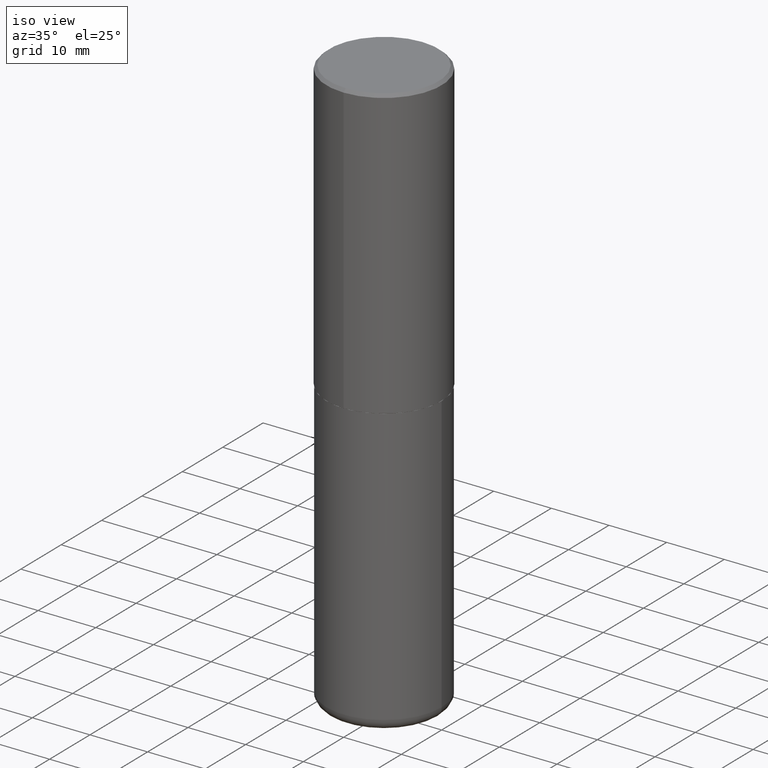
[diagram: clean part render]
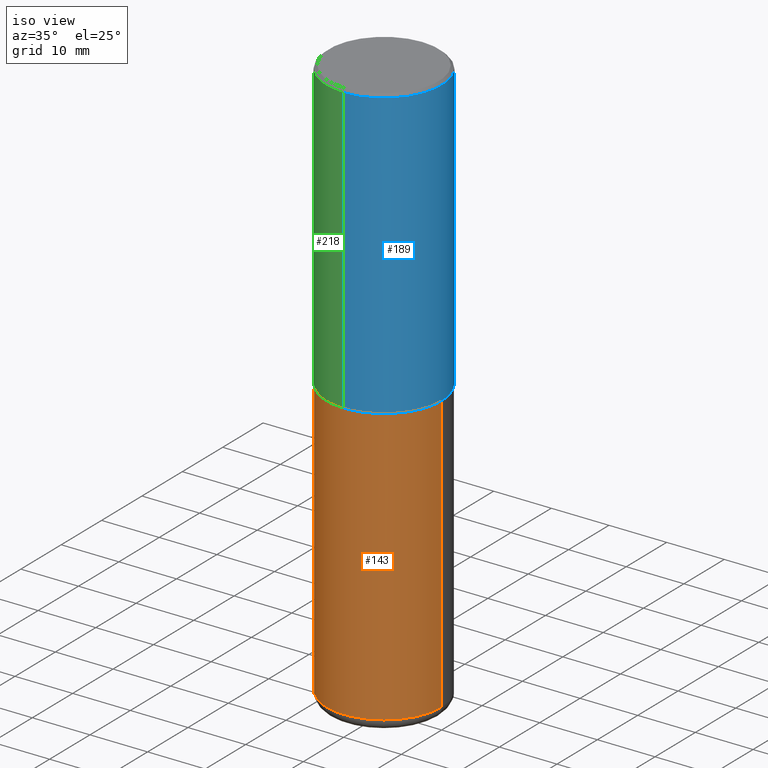
[diagram: same view with three faces highlighted in distinct colors, each labeled with its STEP entity id]
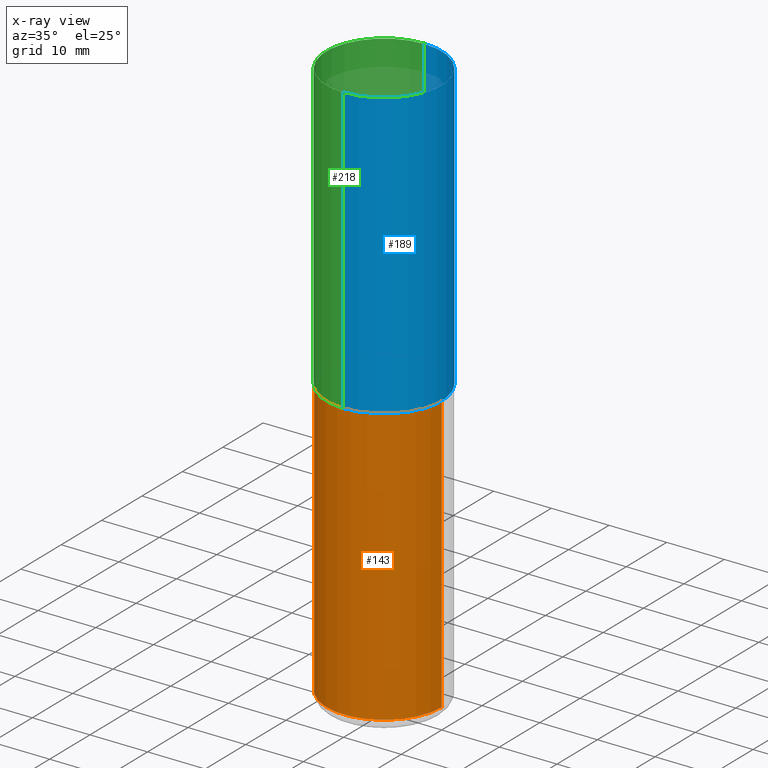
[diagram: x-ray of the same camera — body ghosted, the three highlighted faces saturated]
A machine part, iso view with three faces highlighted in distinct colors.
The next image is the same camera in x-ray (body ghosted, the three faces saturated) — at least one of them is partly hidden behind the body in this view.
Their STEP definitions:

[orange] entity #143 — the highlighted cylindrical surface (partial cylindrical patch) has radius 10 mm, axis along (-0, 0, 1).
#3 = ORIENTED_EDGE ( 'NONE', *, *, #142, .F. ) ;
#18 = CARTESIAN_POINT ( 'NONE',  ( 0.3937000000000002164, -1.622037485586359329E-14, -3.858300000000000285 ) ) ;
#36 = ORIENTED_EDGE ( 'NONE', *, *, #86, .T. ) ;
#46 = CARTESIAN_POINT ( 'NONE',  ( 4.813905344975441835E-29, -6.872981015512731707E-15, -1.968500000000000139 ) ) ;
#75 = DIRECTION ( 'NONE',  ( 1.000000000000000000, -6.982962677686266711E-15, 4.876176775795935793E-29 ) ) ;
#80 = DIRECTION ( 'NONE',  ( -2.445468806185136597E-29, 3.491481338843145583E-15, 1.000000000000000000 ) ) ;
#82 = ORIENTED_EDGE ( 'NONE', *, *, #210, .F. ) ;
#86 = EDGE_CURVE ( 'NONE', #324, #238, #405, .T. ) ;
#108 = ORIENTED_EDGE ( 'NONE', *, *, #244, .T. ) ;
#110 = LINE ( 'NONE', #325, #415 ) ;
#133 = EDGE_LOOP ( 'NONE', ( #3, #36, #108, #82 ) ) ;
#142 = EDGE_CURVE ( 'NONE', #324, #197, #193, .T. ) ;
#143 = ADVANCED_FACE ( 'NONE', ( #297 ), #366, .T. ) ;
#149 = AXIS2_PLACEMENT_3D ( 'NONE', #236, #301, #75 ) ;
#152 = CARTESIAN_POINT ( 'NONE',  ( 9.435352294904112142E-29, -1.347118244965850850E-14, -3.858300000000000285 ) ) ;
#161 = DIRECTION ( 'NONE',  ( -2.445468806185136877E-29, 3.491481338843145188E-15, 1.000000000000000000 ) ) ;
#193 = LINE ( 'NONE', #288, #271 ) ;
#196 = DIRECTION ( 'NONE',  ( 1.000000000000000000, -6.982962677686266711E-15, 0.000000000000000000 ) ) ;
#197 = VERTEX_POINT ( 'NONE', #315 ) ;
#210 = EDGE_CURVE ( 'NONE', #197, #230, #307, .T. ) ;
#230 = VERTEX_POINT ( 'NONE', #312 ) ;
#236 = CARTESIAN_POINT ( 'NONE',  ( 0.000000000000000000, 0.000000000000000000, 0.000000000000000000 ) ) ;
#238 = VERTEX_POINT ( 'NONE', #18 ) ;
#244 = EDGE_CURVE ( 'NONE', #238, #230, #110, .T. ) ;
#271 = VECTOR ( 'NONE', #161, 39.37007874015748143 ) ;
#277 = DIRECTION ( 'NONE',  ( 1.000000000000000000, -6.982962677686265133E-15, 0.000000000000000000 ) ) ;
#280 = AXIS2_PLACEMENT_3D ( 'NONE', #152, #397, #196 ) ;
#288 = CARTESIAN_POINT ( 'NONE',  ( -0.3937000000000001054, 2.797406750687515181E-15, -1.936584745033357016E-29 ) ) ;
#297 = FACE_OUTER_BOUND ( 'NONE', #133, .T. ) ;
#301 = DIRECTION ( 'NONE',  ( -2.445468806185136597E-29, 3.491481338843145583E-15, 1.000000000000000000 ) ) ;
#307 = CIRCLE ( 'NONE', #348, 0.3937000000000000499 ) ;
#312 = CARTESIAN_POINT ( 'NONE',  ( 0.3937000000000000499, -9.622173421717814924E-15, -1.968500000000000139 ) ) ;
#315 = CARTESIAN_POINT ( 'NONE',  ( -0.3937000000000000499, -7.374674981898105316E-15, -1.968500000000000139 ) ) ;
#324 = VERTEX_POINT ( 'NONE', #369 ) ;
#325 = CARTESIAN_POINT ( 'NONE',  ( 0.3937000000000001054, -2.749192406205084005E-15, 1.919750796630860452E-29 ) ) ;
#331 = DIRECTION ( 'NONE',  ( -2.445468806185136877E-29, 3.491481338843145188E-15, 1.000000000000000000 ) ) ;
#348 = AXIS2_PLACEMENT_3D ( 'NONE', #46, #80, #277 ) ;
#366 = CYLINDRICAL_SURFACE ( 'NONE', #149, 0.3937000000000001054 ) ;
#369 = CARTESIAN_POINT ( 'NONE',  ( -0.3937000000000002164, -1.067377569897099292E-14, -3.858300000000000285 ) ) ;
#397 = DIRECTION ( 'NONE',  ( -2.445468806185136597E-29, 3.491481338843145583E-15, 1.000000000000000000 ) ) ;
#405 = CIRCLE ( 'NONE', #280, 0.3937000000000001054 ) ;
#415 = VECTOR ( 'NONE', #331, 39.37007874015748143 ) ;

[blue] entity #189 — the highlighted cylindrical surface (partial cylindrical patch) has radius 10 mm, axis along (-0, 0, 1).
#2 = CARTESIAN_POINT ( 'NONE',  ( 2.749192406205083217E-15, 0.3936999999999999389, -0.02000000000000146105 ) ) ;
#26 = VECTOR ( 'NONE', #353, 39.37007874015748143 ) ;
#29 = CYLINDRICAL_SURFACE ( 'NONE', #342, 0.3937000000000001609 ) ;
#30 = ORIENTED_EDGE ( 'NONE', *, *, #339, .T. ) ;
#31 = LINE ( 'NONE', #228, #26 ) ;
#55 = DIRECTION ( 'NONE',  ( -6.982962677686265922E-15, -1.000000000000000000, 3.469453890861393601E-15 ) ) ;
#57 = CARTESIAN_POINT ( 'NONE',  ( 4.895804672692082949E-31, -6.975992770289649092E-17, -0.02000000000000008715 ) ) ;
#58 = EDGE_CURVE ( 'NONE', #71, #194, #117, .T. ) ;
#71 = VERTEX_POINT ( 'NONE', #229 ) ;
#84 = DIRECTION ( 'NONE',  ( -6.982962677686265922E-15, -1.000000000000000000, 3.487996385144809360E-15 ) ) ;
#94 = CIRCLE ( 'NONE', #376, 0.3937000000000000499 ) ;
#95 = VECTOR ( 'NONE', #249, 39.37007874015748143 ) ;
#98 = EDGE_CURVE ( 'NONE', #157, #251, #94, .T. ) ;
#117 = CIRCLE ( 'NONE', #352, 0.3937000000000002720 ) ;
#128 = FACE_OUTER_BOUND ( 'NONE', #300, .T. ) ;
#135 = EDGE_CURVE ( 'NONE', #71, #157, #31, .T. ) ;
#140 = CARTESIAN_POINT ( 'NONE',  ( 2.797406750687515181E-15, 0.3937000000000001609, -1.373224176831512065E-15 ) ) ;
#157 = VERTEX_POINT ( 'NONE', #203 ) ;
#169 = ORIENTED_EDGE ( 'NONE', *, *, #98, .F. ) ;
#174 = LINE ( 'NONE', #140, #95 ) ;
#180 = CARTESIAN_POINT ( 'NONE',  ( 2.797406750687540030E-15, 0.3936999999999934441, -1.967500000000001359 ) ) ;
#184 = DIRECTION ( 'NONE',  ( -6.982962677686265133E-15, -1.000000000000000000, 3.491137977679279424E-15 ) ) ;
#189 = ADVANCED_FACE ( 'NONE', ( #128 ), #29, .T. ) ;
#194 = VERTEX_POINT ( 'NONE', #180 ) ;
#203 = CARTESIAN_POINT ( 'NONE',  ( -2.700978061722651252E-15, -0.3937000000000001054, -0.01999999999999870978 ) ) ;
#223 = CARTESIAN_POINT ( 'NONE',  ( 0.000000000000000000, 0.000000000000000000, 0.000000000000000000 ) ) ;
#226 = DIRECTION ( 'NONE',  ( -2.447902336346030930E-29, 3.487996385144809755E-15, 1.000000000000000000 ) ) ;
#228 = CARTESIAN_POINT ( 'NONE',  ( -2.749192406205084005E-15, -0.3937000000000001609, 1.373224176831512065E-15 ) ) ;
#229 = CARTESIAN_POINT ( 'NONE',  ( -2.749192406205036674E-15, -0.3937000000000070998, -1.967499999999998694 ) ) ;
#231 = DIRECTION ( 'NONE',  ( -2.447902336346030930E-29, 3.487996385144809755E-15, 1.000000000000000000 ) ) ;
#249 = DIRECTION ( 'NONE',  ( -2.447902336346030930E-29, 3.487996385144809360E-15, 1.000000000000000000 ) ) ;
#251 = VERTEX_POINT ( 'NONE', #2 ) ;
#261 = DIRECTION ( 'NONE',  ( -2.447902336346030930E-29, 3.487996385144809755E-15, 1.000000000000000000 ) ) ;
#300 = EDGE_LOOP ( 'NONE', ( #406, #30, #169, #416 ) ) ;
#339 = EDGE_CURVE ( 'NONE', #194, #251, #174, .T. ) ;
#342 = AXIS2_PLACEMENT_3D ( 'NONE', #223, #261, #84 ) ;
#352 = AXIS2_PLACEMENT_3D ( 'NONE', #388, #231, #55 ) ;
#353 = DIRECTION ( 'NONE',  ( -2.447902336346030930E-29, 3.487996385144809360E-15, 1.000000000000000000 ) ) ;
#376 = AXIS2_PLACEMENT_3D ( 'NONE', #57, #226, #184 ) ;
#388 = CARTESIAN_POINT ( 'NONE',  ( 4.816247846760815671E-29, -6.862632887772413316E-15, -1.967500000000000027 ) ) ;
#406 = ORIENTED_EDGE ( 'NONE', *, *, #58, .T. ) ;
#416 = ORIENTED_EDGE ( 'NONE', *, *, #135, .F. ) ;

[green] entity #218 — the highlighted cylindrical surface (partial cylindrical patch) has radius 10 mm, axis along (-0, 0, 1).
#2 = CARTESIAN_POINT ( 'NONE',  ( 2.749192406205083217E-15, 0.3936999999999999389, -0.02000000000000146105 ) ) ;
#26 = VECTOR ( 'NONE', #353, 39.37007874015748143 ) ;
#31 = LINE ( 'NONE', #228, #26 ) ;
#32 = ORIENTED_EDGE ( 'NONE', *, *, #245, .F. ) ;
#40 = CARTESIAN_POINT ( 'NONE',  ( 4.816247846760815671E-29, -6.862632887772413316E-15, -1.967500000000000027 ) ) ;
#47 = DIRECTION ( 'NONE',  ( -6.982962677686265922E-15, -1.000000000000000000, 3.487996385144809360E-15 ) ) ;
#52 = CIRCLE ( 'NONE', #172, 0.3937000000000002720 ) ;
#63 = ORIENTED_EDGE ( 'NONE', *, *, #339, .F. ) ;
#71 = VERTEX_POINT ( 'NONE', #229 ) ;
#73 = DIRECTION ( 'NONE',  ( -2.447902336346030930E-29, 3.487996385144809755E-15, 1.000000000000000000 ) ) ;
#74 = ORIENTED_EDGE ( 'NONE', *, *, #135, .T. ) ;
#95 = VECTOR ( 'NONE', #249, 39.37007874015748143 ) ;
#109 = DIRECTION ( 'NONE',  ( -6.982962677686265133E-15, -1.000000000000000000, 3.491137977679279424E-15 ) ) ;
#131 = CARTESIAN_POINT ( 'NONE',  ( 4.895804672692082949E-31, -6.975992770289649092E-17, -0.02000000000000008715 ) ) ;
#135 = EDGE_CURVE ( 'NONE', #71, #157, #31, .T. ) ;
#140 = CARTESIAN_POINT ( 'NONE',  ( 2.797406750687515181E-15, 0.3937000000000001609, -1.373224176831512065E-15 ) ) ;
#157 = VERTEX_POINT ( 'NONE', #203 ) ;
#163 = EDGE_CURVE ( 'NONE', #194, #71, #52, .T. ) ;
#172 = AXIS2_PLACEMENT_3D ( 'NONE', #40, #303, #336 ) ;
#174 = LINE ( 'NONE', #140, #95 ) ;
#175 = DIRECTION ( 'NONE',  ( -2.447902336346030930E-29, 3.487996385144809755E-15, 1.000000000000000000 ) ) ;
#180 = CARTESIAN_POINT ( 'NONE',  ( 2.797406750687540030E-15, 0.3936999999999934441, -1.967500000000001359 ) ) ;
#194 = VERTEX_POINT ( 'NONE', #180 ) ;
#203 = CARTESIAN_POINT ( 'NONE',  ( -2.700978061722651252E-15, -0.3937000000000001054, -0.01999999999999870978 ) ) ;
#208 = CARTESIAN_POINT ( 'NONE',  ( 0.000000000000000000, 0.000000000000000000, 0.000000000000000000 ) ) ;
#218 = ADVANCED_FACE ( 'NONE', ( #341 ), #279, .T. ) ;
#228 = CARTESIAN_POINT ( 'NONE',  ( -2.749192406205084005E-15, -0.3937000000000001609, 1.373224176831512065E-15 ) ) ;
#229 = CARTESIAN_POINT ( 'NONE',  ( -2.749192406205036674E-15, -0.3937000000000070998, -1.967499999999998694 ) ) ;
#245 = EDGE_CURVE ( 'NONE', #251, #157, #322, .T. ) ;
#249 = DIRECTION ( 'NONE',  ( -2.447902336346030930E-29, 3.487996385144809360E-15, 1.000000000000000000 ) ) ;
#251 = VERTEX_POINT ( 'NONE', #2 ) ;
#279 = CYLINDRICAL_SURFACE ( 'NONE', #362, 0.3937000000000001609 ) ;
#292 = AXIS2_PLACEMENT_3D ( 'NONE', #131, #73, #109 ) ;
#303 = DIRECTION ( 'NONE',  ( -2.447902336346030930E-29, 3.487996385144809755E-15, 1.000000000000000000 ) ) ;
#322 = CIRCLE ( 'NONE', #292, 0.3937000000000000499 ) ;
#336 = DIRECTION ( 'NONE',  ( -6.982962677686265922E-15, -1.000000000000000000, 3.469453890861393601E-15 ) ) ;
#339 = EDGE_CURVE ( 'NONE', #194, #251, #174, .T. ) ;
#340 = EDGE_LOOP ( 'NONE', ( #63, #346, #74, #32 ) ) ;
#341 = FACE_OUTER_BOUND ( 'NONE', #340, .T. ) ;
#346 = ORIENTED_EDGE ( 'NONE', *, *, #163, .T. ) ;
#353 = DIRECTION ( 'NONE',  ( -2.447902336346030930E-29, 3.487996385144809360E-15, 1.000000000000000000 ) ) ;
#362 = AXIS2_PLACEMENT_3D ( 'NONE', #208, #175, #47 ) ;